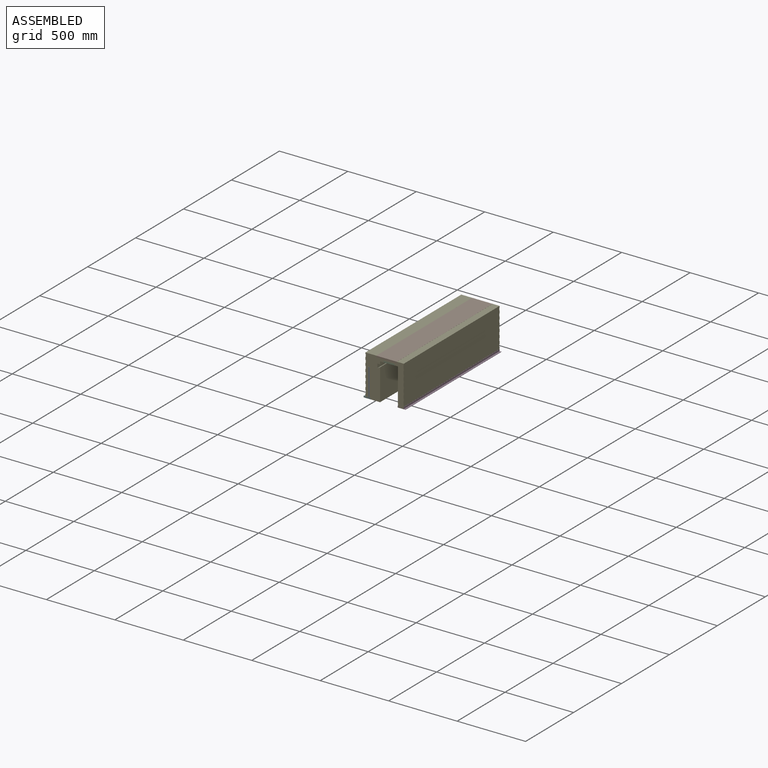
[diagram: assembled view]
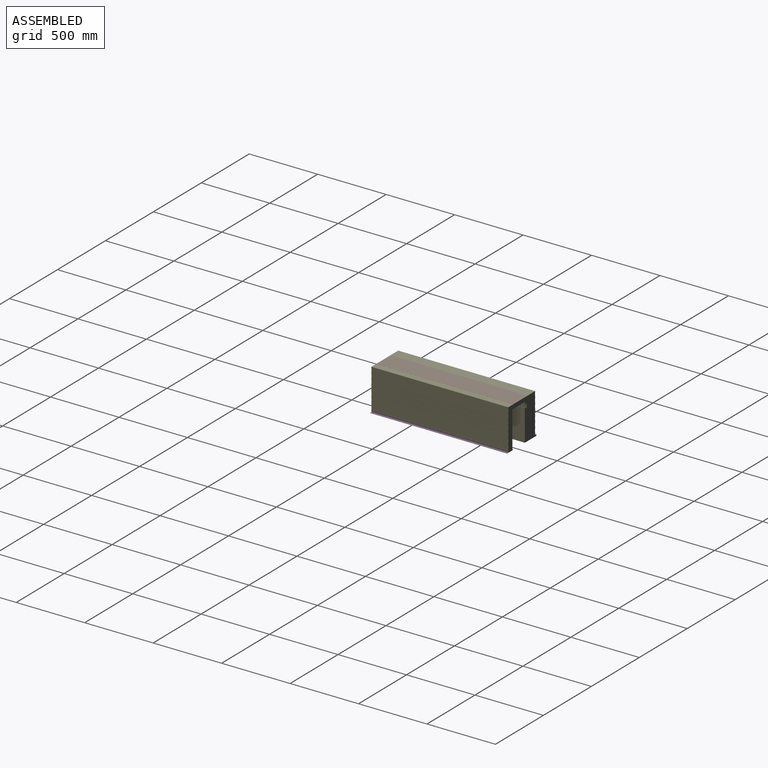
[diagram: assembled view, second angle]
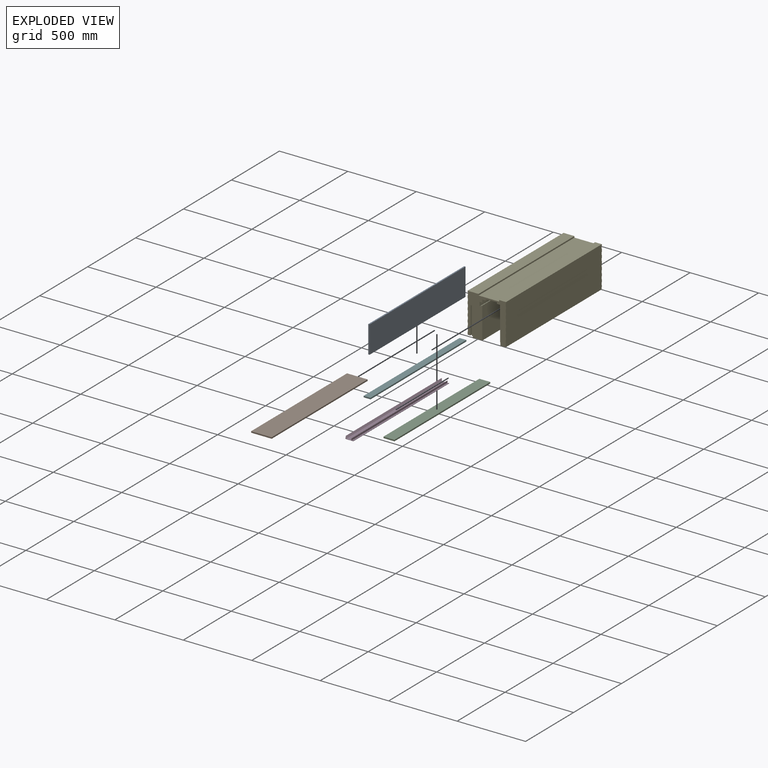
[diagram: exploded view]
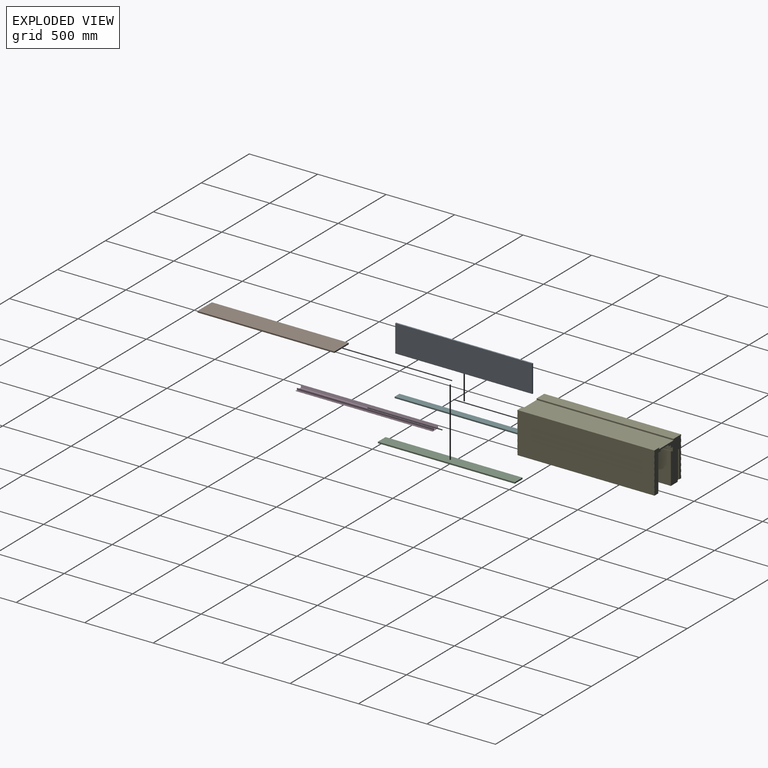
[diagram: exploded view, second angle]
ASSEMBLY  parts=6 mates=5
PART A: 6 faces, bbox 200x1000x10 mm
  f0: plane 1000x10mm, normal (-1,0,0), area 10000mm2, adj f1,f3,f4,f5
  f1: plane 1000x200mm, normal (0,0,-1), area 200000mm2, adj f0,f2,f4,f5
  f2: plane 1000x10mm, normal (1,0,0), area 10000mm2, adj f1,f3,f4,f5
  f3: plane 1000x200mm, normal (0,0,1), area 200000mm2, adj f0,f2,f4,f5
  f4: plane 200x10mm, normal (0,-1,0), area 2000mm2, adj f0,f1,f2,f3
  f5: plane 200x10mm, normal (0,1,0), area 2000mm2, adj f0,f1,f2,f3
PART B: 6 faces, bbox 150x1000x10 mm
  f0: plane 1000x10mm, normal (-1,0,0), area 10000mm2, adj f1,f3,f4,f5
  f1: plane 1000x150mm, normal (0,0,-1), area 150000mm2, adj f0,f2,f4,f5
  f2: plane 1000x10mm, normal (1,0,0), area 10000mm2, adj f1,f3,f4,f5
  f3: plane 1000x150mm, normal (0,0,1), area 150000mm2, adj f0,f2,f4,f5
  f4: plane 150x10mm, normal (0,-1,0), area 1500mm2, adj f0,f1,f2,f3
  f5: plane 150x10mm, normal (0,1,0), area 1500mm2, adj f0,f1,f2,f3
PART C: 6 faces, bbox 80x1000x10 mm
  f0: plane 1000x10mm, normal (-1,0,0), area 10000mm2, adj f1,f3,f4,f5
  f1: plane 1000x80mm, normal (0,0,-1), area 80000mm2, adj f0,f2,f4,f5
  f2: plane 1000x10mm, normal (1,0,0), area 10000mm2, adj f1,f3,f4,f5
  f3: plane 1000x80mm, normal (0,0,1), area 80000mm2, adj f0,f2,f4,f5
  f4: plane 80x10mm, normal (0,-1,0), area 800mm2, adj f0,f1,f2,f3
  f5: plane 80x10mm, normal (0,1,0), area 800mm2, adj f0,f1,f2,f3
PART D: 62 faces, bbox 57.5x1000x21 mm
  f0: plane 1000x14.3mm, normal (-1,0,0), area 14303.9mm2, adj f1,f2,f60,f61
  f1: plane 57.5x21mm, normal (0,-1,0), area 145.8mm2, adj f0,f2,f3,f4,f5,f6,f7,f8
  f2: plane 1000x11mm, normal (0,0,1), area 11000mm2, adj f0,f1,f3,f60
  f3: plane 1000x1.5mm, normal (1,0,0), area 1500mm2, adj f1,f2,f4,f60
  f4: plane 1000x1.5mm, normal (0,0,1), area 1500mm2, adj f1,f3,f5,f60
  f5: plane 1000x3mm, normal (-1,0,0), area 3000mm2, adj f1,f4,f6,f60
  f6: plane 1000x57.5mm, normal (0,0,-1), area 57500mm2, adj f1,f5,f7,f60
  f7: plane 1000x4mm, normal (1,0,0), area 4000mm2, adj f1,f6,f8,f60
  f8: plane 1000x1mm, normal (0,0,1), area 1000mm2, adj f1,f7,f9,f60
  f9: plane 1000x3mm, normal (-1,0,0), area 3000mm2, adj f1,f8,f10,f60
  f10: plane 1000x1mm, normal (0,0,1), area 1000mm2, adj f1,f9,f11,f60
  f11: plane 1000x7mm, normal (1,0,0), area 7000mm2, adj f1,f10,f12,f60
  f12: plane 1000x1mm, normal (0,0,-1), area 1000mm2, adj f1,f11,f13,f60
  f13: plane 1000x3mm, normal (-1,0,0), area 3000mm2, adj f1,f12,f14,f60
  f14: plane 1000x1mm, normal (0,0,-1), area 1000mm2, adj f1,f13,f15,f60
  f15: plane 1000x4mm, normal (1,0,0), area 4000mm2, adj f1,f14,f16,f60
  f16: plane 1000x2mm, normal (0,0,1), area 2000mm2, adj f1,f15,f17,f60
  f17: plane 1000x12mm, normal (1,0,0), area 12000mm2, adj f1,f16,f18,f60
  f18: plane 1000x1mm, normal (0,0,1), area 1000mm2, adj f1,f17,f19,f60
  f19: plane 1000x1.73mm, normal (-0.87,0,0.5), area 2000mm2, adj f1,f18,f20,f60
  f20: plane 1000x1mm, normal (0,0,-1), area 1000mm2, adj f1,f19,f21,f60
  f21: plane 1000x1.73mm, normal (-0.87,0,0.5), area 2000mm2, adj f1,f20,f22,f60
  f22: plane 1000x1mm, normal (0,0,-1), area 1000mm2, adj f1,f21,f23,f60
  f23: plane 1000x1.73mm, normal (-0.87,0,0.5), area 2000mm2, adj f1,f22,f24,f60
  f24: plane 1000x1mm, normal (0,0,-1), area 1000mm2, adj f1,f23,f25,f60
  f25: plane 1000x1.73mm, normal (-0.87,0,0.5), area 2000mm2, adj f1,f24,f26,f60
  f26: plane 1000x1mm, normal (0,0,-1), area 1000mm2, adj f1,f25,f27,f60
  f27: plane 1000x1.73mm, normal (-0.87,0,0.5), area 2000mm2, adj f1,f26,f28,f60
  f28: plane 1000x1mm, normal (0,0,-1), area 1000mm2, adj f1,f27,f29,f60
  f29: plane 1000x1.73mm, normal (-0.87,0,0.5), area 2000mm2, adj f1,f28,f30,f60
  f30: plane 1000x1mm, normal (0,0,-1), area 1000mm2, adj f1,f29,f31,f60
  f31: plane 1000x1.73mm, normal (-0.87,0,0.5), area 2000mm2, adj f1,f30,f32,f60
  f32: plane 1000x1mm, normal (0,0,-1), area 1000mm2, adj f1,f31,f33,f60
  f33: plane 1000x1.73mm, normal (-0.87,0,0.5), area 2000mm2, adj f1,f32,f34,f60
  f34: plane 1000x1mm, normal (0,0,-1), area 1000mm2, adj f1,f33,f35,f60
  f35: plane 1000x1.73mm, normal (-0.87,0,0.5), area 2000mm2, adj f1,f34,f36,f60
  f36: plane 1000x1mm, normal (0,0,-1), area 1000mm2, adj f1,f35,f37,f60
  f37: plane 1000x1.73mm, normal (-0.87,0,0.5), area 2000mm2, adj f1,f36,f38,f60
  f38: plane 1000x1mm, normal (0,0,-1), area 1000mm2, adj f1,f37,f39,f60
  f39: plane 1000x1.73mm, normal (-0.87,0,0.5), area 2000mm2, adj f1,f38,f40,f60
  f40: plane 1000x1mm, normal (0,0,-1), area 1000mm2, adj f1,f39,f41,f60
  f41: plane 1000x0.45mm, normal (-1,0,0), area 447.4mm2, adj f1,f40,f42,f60
  f42: plane 1000x41mm, normal (0,0,1), area 41000mm2, adj f1,f41,f43,f60
  f43: plane 1000x0.45mm, normal (1,0,0), area 447.4mm2, adj f1,f42,f44,f60
  f44: plane 1000x1mm, normal (0,0,-1), area 1000mm2, adj f1,f43,f45,f60
  f45: plane 1000x1.73mm, normal (0.87,0,0.5), area 2000mm2, adj f1,f44,f46,f60
  f46: plane 1000x1mm, normal (0,0,-1), area 1000mm2, adj f1,f45,f47,f60
  f47: plane 1000x1.73mm, normal (0.87,0,0.5), area 2000mm2, adj f1,f46,f48,f60
  f48: plane 1000x1mm, normal (0,0,-1), area 1000mm2, adj f1,f47,f49,f60
  f49: plane 1000x1.73mm, normal (0.87,0,0.5), area 2000mm2, adj f1,f48,f50,f60
  f50: plane 1000x1mm, normal (0,0,-1), area 1000mm2, adj f1,f49,f51,f60
  f51: plane 1000x1.73mm, normal (0.87,0,0.5), area 2000mm2, adj f1,f50,f52,f60
  f52: plane 1000x1mm, normal (0,0,-1), area 1000mm2, adj f1,f51,f53,f60
  f53: plane 1000x1.73mm, normal (0.87,0,0.5), area 2000mm2, adj f1,f52,f54,f60
  f54: plane 1000x1mm, normal (0,0,-1), area 1000mm2, adj f1,f53,f55,f60
  f55: plane 1000x1.73mm, normal (0.87,0,0.5), area 2000mm2, adj f1,f54,f56,f60
  f56: plane 1000x1mm, normal (0,0,-1), area 1000mm2, adj f1,f55,f57,f60
  f57: plane 1000x1.73mm, normal (0.87,0,0.5), area 2000mm2, adj f1,f56,f58,f60
  f58: plane 1000x1mm, normal (0,0,-1), area 1000mm2, adj f1,f57,f59,f60
  f59: plane 1000x1.73mm, normal (0.87,0,0.5), area 2000mm2, adj f1,f58,f60,f61
  f60: plane 57.5x21mm, normal (0,1,0), area 145.8mm2, adj f0,f2,f3,f4,f5,f6,f7,f8
  f61: plane 1000x1mm, normal (0,0,1), area 1000mm2, adj f0,f1,f59,f60
PART E: 88 faces, bbox 280x300x1000 mm
  f0: plane 1000x20mm, normal (-1,0,0), area 20000mm2, adj f44,f45,f82,f86
  f1: plane 1000x20mm, normal (-1,0,0), area 20000mm2, adj f44,f45,f79,f83
  f2: plane 1000x20mm, normal (-1,0,0), area 20000mm2, adj f44,f45,f76,f80
  f3: plane 1000x20mm, normal (-1,0,0), area 20000mm2, adj f44,f45,f73,f77
  f4: plane 1000x20mm, normal (-1,0,0), area 20000mm2, adj f44,f45,f70,f74
  f5: plane 1000x20mm, normal (-1,0,0), area 20000mm2, adj f44,f45,f67,f71
  f6: plane 1000x10mm, normal (-1,0,0), area 10000mm2, adj f15,f44,f45,f68
  f7: plane 1000x10mm, normal (1,0,0), area 10000mm2, adj f39,f44,f45,f64
  f8: plane 1000x20mm, normal (1,0,0), area 20000mm2, adj f44,f45,f61,f65
  f9: plane 1000x20mm, normal (1,0,0), area 20000mm2, adj f44,f45,f58,f62
  f10: plane 1000x20mm, normal (1,0,0), area 20000mm2, adj f44,f45,f55,f59
  f11: plane 1000x20mm, normal (1,0,0), area 20000mm2, adj f44,f45,f52,f56
  f12: plane 1000x20mm, normal (1,0,0), area 20000mm2, adj f44,f45,f49,f53
  f13: plane 1000x20mm, normal (1,0,0), area 20000mm2, adj f44,f45,f46,f50
  f14: plane 1000x10mm, normal (1,0,0), area 10000mm2, adj f15,f43,f44,f45
  f15: plane 1000x79.5mm, normal (0,1,0), area 79500mm2, adj f6,f14,f44,f45
  f16: plane 1000x20mm, normal (-1,0,0), area 20000mm2, adj f17,f44,f45,f85
  f17: plane 1000x20.5mm, normal (0,-1,0), area 20500mm2, adj f16,f18,f44,f45
  f18: plane 1000x202mm, normal (1,0,0), area 202000mm2, adj f17,f19,f44,f45
  f19: cylinder r=10mm len=1000mm, axis (0,0,-1), area 11054.3mm2, adj f18,f20,f44,f45
  f20: plane 1000x202mm, normal (-1,0,0), area 202000mm2, adj f19,f21,f44,f45
  f21: plane 1000x6mm, normal (0,-1,0), area 6000mm2, adj f20,f22,f44,f45
  f22: plane 1000x10mm, normal (-1,0,0), area 10000mm2, adj f21,f23,f44,f45
  f23: plane 1000x70mm, normal (0,-1,0), area 70000mm2, adj f22,f24,f44,f45
  f24: plane 1000x230.19mm, normal (1,0,0), area 230190.5mm2, adj f23,f25,f44,f45
  f25: plane 1000x20mm, normal (-0.45,0.89,0), area 22446.5mm2, adj f24,f26,f44,f45
  f26: plane 1000x30mm, normal (1,0,0), area 30000mm2, adj f25,f27,f44,f45
  f27: plane 1000x20mm, normal (0,-1,0), area 20000mm2, adj f26,f28,f44,f45
  f28: plane 1000x20mm, normal (1,0,0), area 20000mm2, adj f27,f29,f44,f45
  f29: plane 1000x24.75mm, normal (0,-1,0), area 24750mm2, adj f28,f30,f44,f45
  f30: plane 1000x10mm, normal (1,0,0), area 10000mm2, adj f29,f31,f44,f45
  f31: plane 1000x80.5mm, normal (0,-1,0), area 80500mm2, adj f30,f32,f44,f45
  f32: plane 1000x10mm, normal (-1,0,0), area 10000mm2, adj f31,f33,f44,f45
  f33: plane 1000x24.75mm, normal (0,-1,0), area 24750mm2, adj f32,f34,f44,f45
  f34: plane 1000x247.5mm, normal (-1,0,0), area 247500mm2, adj f33,f35,f44,f45
  f35: plane 1000x2mm, normal (0,-1,0), area 2000mm2, adj f34,f36,f44,f45
  f36: plane 1000x21.5mm, normal (-1,0,0), area 21500mm2, adj f35,f37,f44,f45
  f37: plane 1000x39.1mm, normal (0,-1,0), area 39100mm2, adj f36,f38,f44,f45
  f38: plane 1000x18.5mm, normal (1,0,0), area 18500mm2, adj f37,f39,f44,f45
  f39: plane 1000x1.9mm, normal (0,-1,0), area 1900mm2, adj f7,f38,f44,f45
  f40: plane 1000x10.5mm, normal (1,0,0), area 10500mm2, adj f41,f44,f45,f47
  f41: plane 1000x50mm, normal (0,1,0), area 50000mm2, adj f40,f42,f44,f45
  f42: plane 1000x10mm, normal (-1,0,0), area 10000mm2, adj f41,f43,f44,f45
  f43: plane 1000x150.5mm, normal (0,1,0), area 150500mm2, adj f14,f42,f44,f45
  f44: plane 300x280mm, normal (0,0,1), area 42874.3mm2, adj f0,f1,f2,f3,f4,f5,f6,f7
  f45: plane 300x280mm, normal (0,0,-1), area 42874.3mm2, adj f0,f1,f2,f3,f4,f5,f6,f7
  f46: plane 1000x2mm, normal (-0.71,0.71,0), area 2828.4mm2, adj f13,f44,f45,f48
  f47: plane 1000x2mm, normal (-0.71,-0.71,0), area 2828.4mm2, adj f40,f44,f45,f48
  f48: plane 1000x24mm, normal (1,0,0), area 24000mm2, adj f44,f45,f46,f47
  f49: plane 1000x2mm, normal (-0.71,0.71,0), area 2828.4mm2, adj f12,f44,f45,f51
  f50: plane 1000x2mm, normal (-0.71,-0.71,0), area 2828.4mm2, adj f13,f44,f45,f51
  f51: plane 1000x24mm, normal (1,0,0), area 24000mm2, adj f44,f45,f49,f50
  f52: plane 1000x2mm, normal (-0.71,0.71,0), area 2828.4mm2, adj f11,f44,f45,f54
  f53: plane 1000x2mm, normal (-0.71,-0.71,0), area 2828.4mm2, adj f12,f44,f45,f54
  f54: plane 1000x24mm, normal (1,0,0), area 24000mm2, adj f44,f45,f52,f53
  f55: plane 1000x2mm, normal (-0.71,0.71,0), area 2828.4mm2, adj f10,f44,f45,f57
  f56: plane 1000x2mm, normal (-0.71,-0.71,0), area 2828.4mm2, adj f11,f44,f45,f57
  f57: plane 1000x24mm, normal (1,0,0), area 24000mm2, adj f44,f45,f55,f56
  f58: plane 1000x2mm, normal (-0.71,0.71,0), area 2828.4mm2, adj f9,f44,f45,f60
  f59: plane 1000x2mm, normal (-0.71,-0.71,0), area 2828.4mm2, adj f10,f44,f45,f60
  f60: plane 1000x24mm, normal (1,0,0), area 24000mm2, adj f44,f45,f58,f59
  f61: plane 1000x2mm, normal (-0.71,0.71,0), area 2828.4mm2, adj f8,f44,f45,f63
  f62: plane 1000x2mm, normal (-0.71,-0.71,0), area 2828.4mm2, adj f9,f44,f45,f63
  f63: plane 1000x24mm, normal (1,0,0), area 24000mm2, adj f44,f45,f61,f62
  f64: plane 1000x2mm, normal (-0.71,0.71,0), area 2828.4mm2, adj f7,f44,f45,f66
  f65: plane 1000x2mm, normal (-0.71,-0.71,0), area 2828.4mm2, adj f8,f44,f45,f66
  f66: plane 1000x24mm, normal (1,0,0), area 24000mm2, adj f44,f45,f64,f65
  f67: plane 1000x2mm, normal (0.71,0.71,0), area 2828.4mm2, adj f5,f44,f45,f69
  f68: plane 1000x2mm, normal (0.71,-0.71,0), area 2828.4mm2, adj f6,f44,f45,f69
  f69: plane 1000x24mm, normal (-1,0,0), area 24000mm2, adj f44,f45,f67,f68
  f70: plane 1000x2mm, normal (0.71,0.71,0), area 2828.4mm2, adj f4,f44,f45,f72
  f71: plane 1000x2mm, normal (0.71,-0.71,0), area 2828.4mm2, adj f5,f44,f45,f72
  f72: plane 1000x24mm, normal (-1,0,0), area 24000mm2, adj f44,f45,f70,f71
  f73: plane 1000x2mm, normal (0.71,0.71,0), area 2828.4mm2, adj f3,f44,f45,f75
  f74: plane 1000x2mm, normal (0.71,-0.71,0), area 2828.4mm2, adj f4,f44,f45,f75
  f75: plane 1000x24mm, normal (-1,0,0), area 24000mm2, adj f44,f45,f73,f74
  f76: plane 1000x2mm, normal (0.71,0.71,0), area 2828.4mm2, adj f2,f44,f45,f78
  f77: plane 1000x2mm, normal (0.71,-0.71,0), area 2828.4mm2, adj f3,f44,f45,f78
  f78: plane 1000x24mm, normal (-1,0,0), area 24000mm2, adj f44,f45,f76,f77
  f79: plane 1000x2mm, normal (0.71,0.71,0), area 2828.4mm2, adj f1,f44,f45,f81
  f80: plane 1000x2mm, normal (0.71,-0.71,0), area 2828.4mm2, adj f2,f44,f45,f81
  f81: plane 1000x24mm, normal (-1,0,0), area 24000mm2, adj f44,f45,f79,f80
  f82: plane 1000x2mm, normal (0.71,0.71,0), area 2828.4mm2, adj f0,f44,f45,f84
  f83: plane 1000x2mm, normal (0.71,-0.71,0), area 2828.4mm2, adj f1,f44,f45,f84
  f84: plane 1000x24mm, normal (-1,0,0), area 24000mm2, adj f44,f45,f82,f83
  f85: plane 1000x2mm, normal (0.71,0.71,0), area 2828.4mm2, adj f16,f44,f45,f87
  f86: plane 1000x2mm, normal (0.71,-0.71,0), area 2828.4mm2, adj f0,f44,f45,f87
  f87: plane 1000x24mm, normal (-1,0,0), area 24000mm2, adj f44,f45,f85,f86
PART F: 6 faces, bbox 50x1000x10 mm
  f0: plane 1000x10mm, normal (-1,0,0), area 10000mm2, adj f1,f3,f4,f5
  f1: plane 1000x50mm, normal (0,0,-1), area 50000mm2, adj f0,f2,f4,f5
  f2: plane 1000x10mm, normal (1,0,0), area 10000mm2, adj f1,f3,f4,f5
  f3: plane 1000x50mm, normal (0,0,1), area 50000mm2, adj f0,f2,f4,f5
  f4: plane 50x10mm, normal (0,-1,0), area 500mm2, adj f0,f1,f2,f3
  f5: plane 50x10mm, normal (0,1,0), area 500mm2, adj f0,f1,f2,f3
PLACE A rot(axis=(0,1,0),90deg) t=(-249.58,500,-24.72)mm
PLACE B t=(-190.83,500,55.28)mm fixed
PLACE C t=(-138.58,500,35.28)mm
PLACE D rot(axis=(0,0,1),180deg) t=(-35.33,-500,-235.22)mm
PLACE E rot(axis=(1,0,0),90deg) t=(-156.53,500,-81.06)mm
PLACE F t=(-283.33,500,-234.72)mm
MATE fastened A.f4 <-> E.f44  axis (0,-1,0) through (-239.33,-500,-22.72)mm
MATE fastened E.f44 <-> B.f4  axis (0,-1,0) through (-190.83,-500,65.28)mm
MATE fastened C.f4 <-> E.f44  axis (0,-1,0) through (-138.58,-500,45.28)mm
MATE fastened D.f60 <-> E.f44  axis (0,-1,0) through (-31.33,-500,-233.72)mm
MATE fastened F.f4 <-> E.f44  axis (0,-1,0) through (-233.33,-500,-224.72)mm
